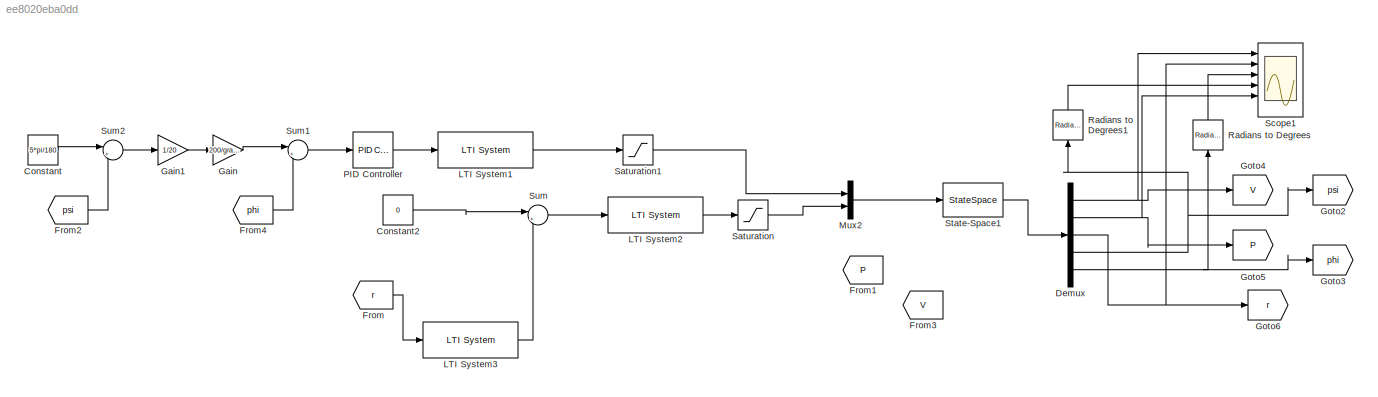
MODEL slx_ee8020eba0dd
KIND model
CONFIG AbsTol = auto
CONFIG EnableMultiTasking = off
CONFIG FixedStep = auto
CONFIG MaxStep = auto
CONFIG MinStep = auto
CONFIG RelTol = 1e-3
CONFIG SampleTimeConstraint = Unconstrained
CONFIG SolverName = VariableStepAuto
CONFIG StartTime = 0.0
CONFIG StopTime = 300
BLOCK [Constant] Constant
  Value = 5*pi/180
BLOCK [Constant] Constant2
  Value = 0
BLOCK [Demux] Demux
  Outputs = 5
  Ports = [1, 5]
BLOCK [From] From
  GotoTag = r
BLOCK [From] From1
  GotoTag = P
BLOCK [From] From2
  GotoTag = psi
BLOCK [From] From3
  GotoTag = V
BLOCK [From] From4
  GotoTag = phi
BLOCK [Gain] Gain
  Gain = 200/gravity
BLOCK [Gain] Gain1
  Gain = 1/20
BLOCK [Goto] Goto2
  GotoTag = psi
BLOCK [Goto] Goto3
  GotoTag = phi
BLOCK [Goto] Goto4
  GotoTag = V
BLOCK [Goto] Goto5
  GotoTag = P
BLOCK [Goto] Goto6
  GotoTag = r
BLOCK [Reference] LTI System1  REF=cstblocks/LTI System
  Ports = [1, 1]
  SourceBlock = cstblocks/LTI System
  SourceProductBaseCode = CT
  SourceType = LTI Block
BLOCK [Reference] LTI System2  REF=cstblocks/LTI System
  Ports = [1, 1]
  SourceBlock = cstblocks/LTI System
  SourceProductBaseCode = CT
  SourceType = LTI Block
BLOCK [Reference] LTI System3  REF=cstblocks/LTI System
  Ports = [1, 1]
  SourceBlock = cstblocks/LTI System
  SourceProductBaseCode = CT
  SourceType = LTI Block
BLOCK [Mux] Mux2
  DisplayOption = bar
  Inputs = 2
  Ports = [2, 1]
BLOCK [Reference] PID Controller  REF=slpidlib/PID Controller
  Commented = through
  Ports = [1, 1]
  SourceBlock = slpidlib/PID Controller
  SourceProductBaseCode = SL
  SourceType = PID 1dof
BLOCK [Reference] Radians to Degrees  REF=simulink_extras/Transformations/Radians
to Degrees
  NameLocation = right
  Ports = [1, 1]
  SourceBlock = simulink_extras/Transformations/Radians\nto Degrees
  SourceProductBaseCode = SL
  SourceType = RadiansToDegrees
BLOCK [Reference] Radians to Degrees1  REF=simulink_extras/Transformations/Radians
to Degrees
  NameLocation = right
  Ports = [1, 1]
  SourceBlock = simulink_extras/Transformations/Radians\nto Degrees
  SourceProductBaseCode = SL
  SourceType = RadiansToDegrees
BLOCK [Saturate] Saturation
  LowerLimit = -30*pi/180
  UpperLimit = 30*pi/180
BLOCK [Saturate] Saturation1
  LowerLimit = -30*pi/180
  UpperLimit = 30*pi/180
  ZeroCross = off
BLOCK [Scope] Scope1
  Floating = off
  NumInputPorts = 6
  Ports = [6]
  ScopeSpecificationString = Simulink.scopes.TimeScopeBlockCfg('CurrentConfiguration', extmgr.ConfigurationSet(extmgr.Configuration('Core','General UI',true),extmgr.Configuration('Core','Source UI',true),extmgr.Configuration('Sources','WiredSimulink',true,'DataLoggingVariableName','ScopeData2'),extmgr.Configuration('Visuals','Time Domain',true,'SerializedDisplays',{struct('MinYLimReal','-17153.10987','MaxYLimReal','12528.1202...<+4909ch>
BLOCK [StateSpace] State-Space1
  A = A_latr_full1
  B = B_latr_full
  C = C_latr_full
  D = D_latr_full
  InitialCondition = 0
  ParameterTunability = Unconstrained
  Ports = [1, 1]
BLOCK [Sum] Sum
  Inputs = |+-
  Ports = [2, 1]
BLOCK [Sum] Sum1
  Inputs = |+-
  Ports = [2, 1]
BLOCK [Sum] Sum2
  Inputs = |+-
  Ports = [2, 1]
LINE Constant2:1 -> Sum:1
LINE Constant:1 -> Sum2:1
NET Demux:1 -> Goto4:1, Scope1:1
NET Demux:2 -> Goto5:1, Scope1:5
NET Demux:3 -> Goto6:1, Scope1:2
NET Demux:4 -> Goto2:1, Radians to Degrees1:1
NET Demux:5 -> Goto3:1, Radians to Degrees:1
LINE From2:1 -> Sum2:2
LINE From4:1 -> Sum1:2
LINE From:1 -> LTI System3:1
LINE Gain1:1 -> Gain:1
LINE Gain:1 -> Sum1:1
LINE LTI System1:1 -> Saturation1:1
LINE LTI System2:1 -> Saturation:1
LINE LTI System3:1 -> Sum:2
LINE Mux2:1 -> State-Space1:1
LINE PID Controller:1 -> LTI System1:1
LINE Radians to Degrees1:1 -> Scope1:4
LINE Radians to Degrees:1 -> Scope1:3
LINE Saturation1:1 -> Mux2:1
LINE Saturation:1 -> Mux2:2
LINE State-Space1:1 -> Demux:1
LINE Sum1:1 -> PID Controller:1
LINE Sum2:1 -> Gain1:1
LINE Sum:1 -> LTI System2:1
note: NET lines group one-source signal fan-out (src -> all destinations, sorted); 1:1 wires keep LINE
